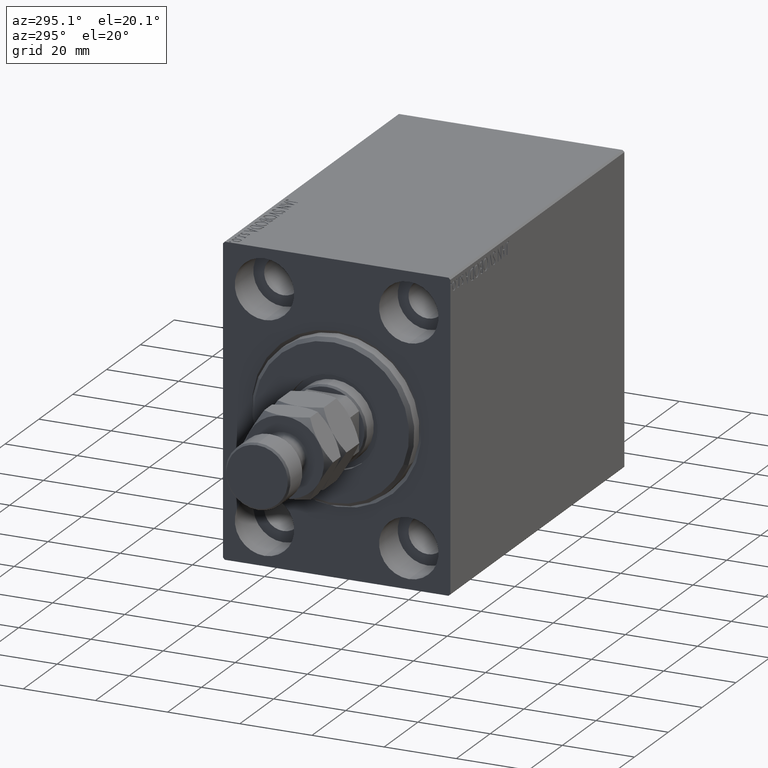
[diagram: clean part render]
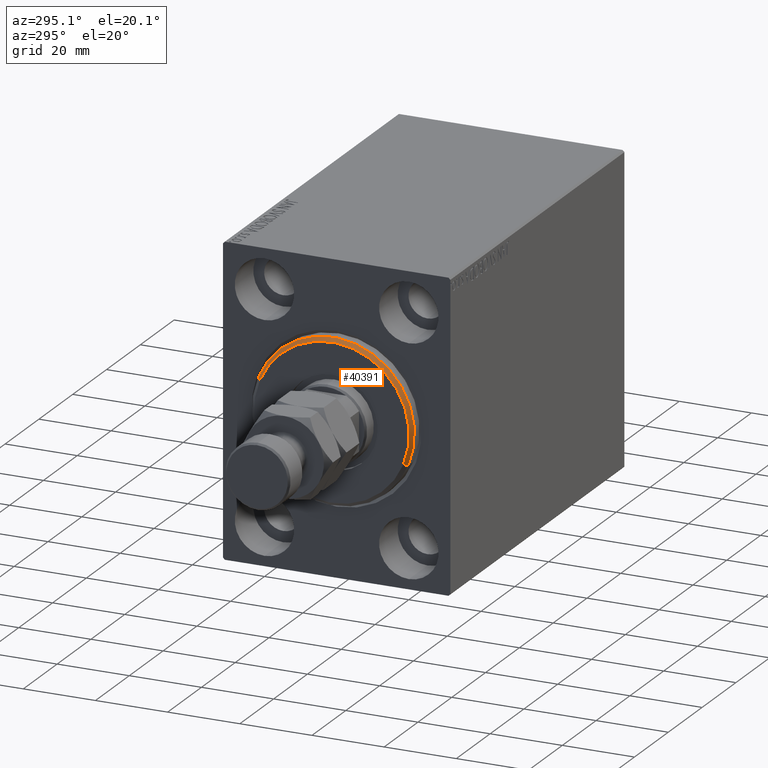
[diagram: same view with one face highlighted and labeled with its STEP entity id]
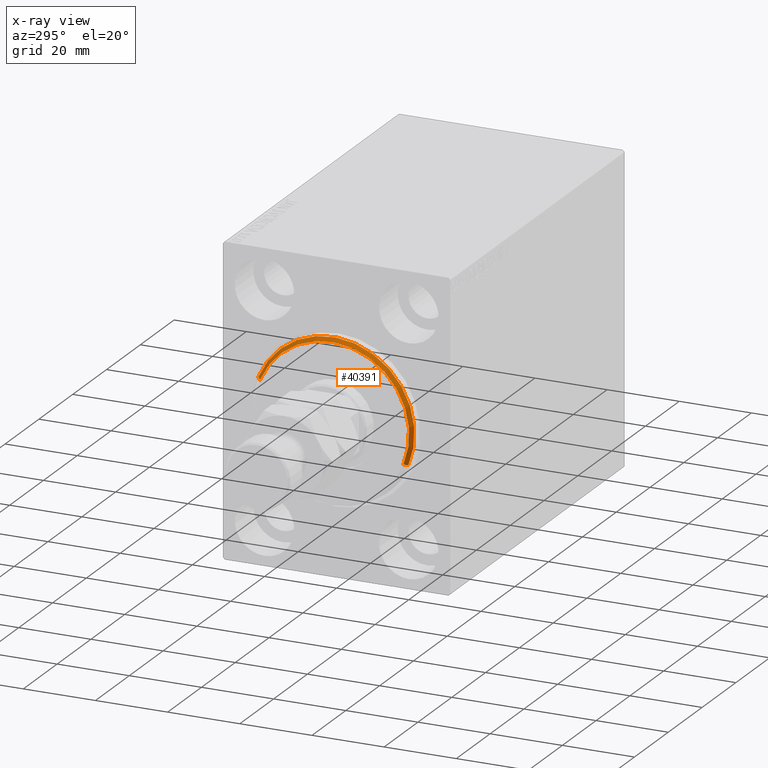
[diagram: x-ray of the same camera — body ghosted, the highlighted face saturated]
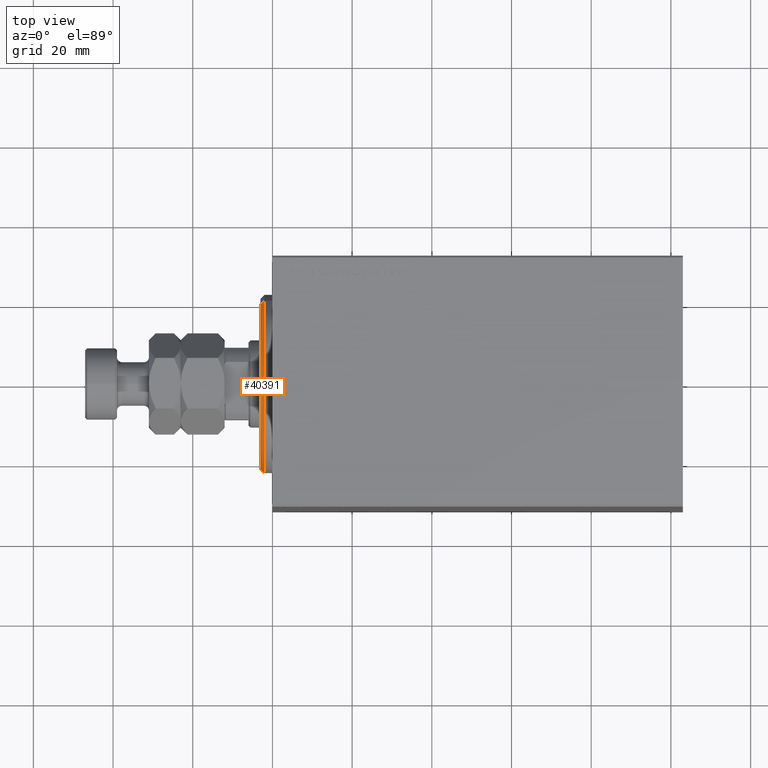
[diagram: same view with one face highlighted and labeled with its STEP entity id]
A machine part, auxiliary view. The second image highlights one B-rep face of the part: STEP entity #40391.
The next image is the same camera in x-ray: the body ghosted, the highlighted face saturated — about 0% of this face is hidden behind the body in this view.
A second angle (top view) of the same face is appended — the face is thin or edge-on in the first view.
In plain terms, the highlighted conical surface has half-angle 45 deg.
Its self-contained STEP definition (entity closure, byte-faithful):
#61 = CARTESIAN_POINT ( 'NONE',  ( 1.999999999999999112, 0.000000000000000000, 0.000000000000000000 ) ) ;
#1527 = EDGE_LOOP ( 'NONE', ( #33041, #19685, #30039, #17761 ) ) ;
#4451 = FACE_OUTER_BOUND ( 'NONE', #1527, .T. ) ;
#5094 = EDGE_CURVE ( 'NONE', #23903, #19880, #32012, .T. ) ;
#6379 = DIRECTION ( 'NONE',  ( -0.7071067811865487940, 0.000000000000000000, 0.7071067811865463515 ) ) ;
#6810 = VECTOR ( 'NONE', #6379, 1000.000000000000000 ) ;
#10123 = AXIS2_PLACEMENT_3D ( 'NONE', #18459, #32459, #43020 ) ;
#10349 = CARTESIAN_POINT ( 'NONE',  ( 1.999999999999999112, 2.755455298081545172E-15, -22.50000000000000355 ) ) ;
#10988 = EDGE_CURVE ( 'NONE', #19880, #45256, #20731, .T. ) ;
#13610 = CARTESIAN_POINT ( 'NONE',  ( 3.000000000000000000, 2.632990618166810024E-15, -21.50000000000000355 ) ) ;
#14543 = VECTOR ( 'NONE', #41623, 1000.000000000000000 ) ;
#16944 = CARTESIAN_POINT ( 'NONE',  ( 3.000000000000000000, 0.000000000000000000, 21.50000000000000355 ) ) ;
#17761 = ORIENTED_EDGE ( 'NONE', *, *, #42669, .F. ) ;
#18459 = CARTESIAN_POINT ( 'NONE',  ( 3.000000000000000000, 0.000000000000000000, 0.000000000000000000 ) ) ;
#18805 = AXIS2_PLACEMENT_3D ( 'NONE', #28813, #42816, #36386 ) ;
#19685 = ORIENTED_EDGE ( 'NONE', *, *, #5094, .F. ) ;
#19880 = VERTEX_POINT ( 'NONE', #42175 ) ;
#20731 = LINE ( 'NONE', #13610, #14543 ) ;
#23554 = EDGE_CURVE ( 'NONE', #23903, #32008, #37831, .T. ) ;
#23562 = CARTESIAN_POINT ( 'NONE',  ( 3.000000000000000000, 0.000000000000000000, 21.50000000000000355 ) ) ;
#23903 = VERTEX_POINT ( 'NONE', #23562 ) ;
#28813 = CARTESIAN_POINT ( 'NONE',  ( 3.000000000000000000, 0.000000000000000000, 0.000000000000000000 ) ) ;
#29204 = DIRECTION ( 'NONE',  ( -1.000000000000000000, 0.000000000000000000, 0.000000000000000000 ) ) ;
#30039 = ORIENTED_EDGE ( 'NONE', *, *, #23554, .T. ) ;
#32008 = VERTEX_POINT ( 'NONE', #38436 ) ;
#32012 = CIRCLE ( 'NONE', #18805, 21.50000000000000355 ) ;
#32459 = DIRECTION ( 'NONE',  ( -1.000000000000000000, 0.000000000000000000, 0.000000000000000000 ) ) ;
#33041 = ORIENTED_EDGE ( 'NONE', *, *, #10988, .F. ) ;
#35116 = CIRCLE ( 'NONE', #43179, 22.50000000000000355 ) ;
#36386 = DIRECTION ( 'NONE',  ( 0.000000000000000000, 0.000000000000000000, -1.000000000000000000 ) ) ;
#37831 = LINE ( 'NONE', #16944, #6810 ) ;
#38436 = CARTESIAN_POINT ( 'NONE',  ( 1.999999999999999112, 0.000000000000000000, 22.50000000000000355 ) ) ;
#40391 = ADVANCED_FACE ( 'NONE', ( #4451 ), #43865, .T. ) ;
#41623 = DIRECTION ( 'NONE',  ( -0.7071067811865487940, 8.659560562354919300E-17, -0.7071067811865463515 ) ) ;
#42175 = CARTESIAN_POINT ( 'NONE',  ( 3.000000000000000000, 2.694222958124177598E-15, -21.50000000000000355 ) ) ;
#42669 = EDGE_CURVE ( 'NONE', #45256, #32008, #35116, .T. ) ;
#42816 = DIRECTION ( 'NONE',  ( 1.000000000000000000, -0.000000000000000000, 0.000000000000000000 ) ) ;
#43020 = DIRECTION ( 'NONE',  ( 0.000000000000000000, 0.000000000000000000, 1.000000000000000000 ) ) ;
#43179 = AXIS2_PLACEMENT_3D ( 'NONE', #61, #29204, #43208 ) ;
#43208 = DIRECTION ( 'NONE',  ( 0.000000000000000000, 0.000000000000000000, -1.000000000000000000 ) ) ;
#43865 = CONICAL_SURFACE ( 'NONE', #10123, 21.50000000000000355, 0.7853981633974466137 ) ;
#45256 = VERTEX_POINT ( 'NONE', #10349 ) ;